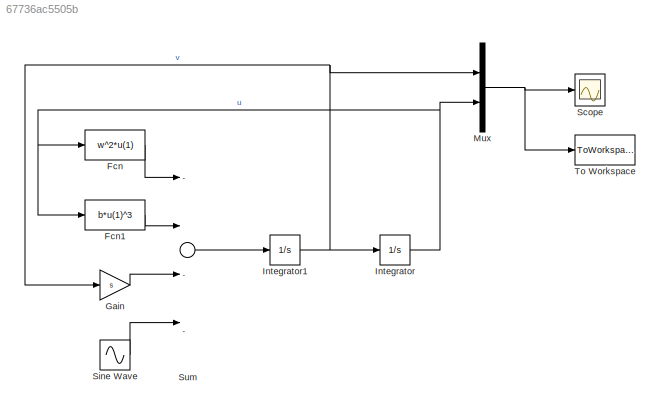
MODEL slx_67736ac5505b
KIND model
BLOCK [Fcn] Fcn
  Expr = w^2*u(1)
BLOCK [Fcn] Fcn1
  Expr = b*u(1)^3
BLOCK [Gain] Gain
  Gain = s
  OutDataTypeStr = Inherit: Inherit via internal rule
  ParamDataTypeStr = Inherit: Inherit via internal rule
  SaturateOnIntegerOverflow = off
BLOCK [Integrator] Integrator
  InitialCondition = param.ic(2)
  Ports = [1, 1]
BLOCK [Integrator] Integrator1
  InitialCondition = param.ic(1)
  Ports = [1, 1]
BLOCK [Mux] Mux
  DisplayOption = bar
  Inputs = 2
  Ports = [2, 1]
BLOCK [Scope] Scope
  Floating = off
  LegendLocations = 0.68997      0.6778     0.19172     0.14089
  LimitDataPoints = off
  NumInputPorts = 1
  Ports = [1]
  ShowLegends = on
BLOCK [Sin] Sine Wave
  Amplitude = y
  Frequency = w
  Phase = fi
  Ports = [0, 1]
  SampleTime = 0
BLOCK [Sum] Sum
  InputSameDT = off
  Inputs = -|-|-|+
  OutDataTypeStr = Inherit: Inherit via internal rule
  Ports = [4, 1]
  SaturateOnIntegerOverflow = off
BLOCK [ToWorkspace] To Workspace
  FixptAsFi = on
  MaxDataPoints = inf
  Ports = [1]
  SampleTime = -1
  Save2DSignal = 3-D array (concatenate along third dimension)
  SaveFormat = Timeseries
  VariableName = simout
LINE Fcn1:1 -> Sum:2
LINE Fcn:1 -> Sum:1
LINE Gain:1 -> Sum:3
NET Integrator1:1 -> Gain:1, Integrator:1, Mux:1
NET Integrator:1 -> Fcn1:1, Fcn:1, Mux:2
NET Mux:1 -> Scope:1, To Workspace:1
LINE Sine Wave:1 -> Sum:4
LINE Sum:1 -> Integrator1:1
note: NET lines group one-source signal fan-out (src -> all destinations, sorted); 1:1 wires keep LINE
